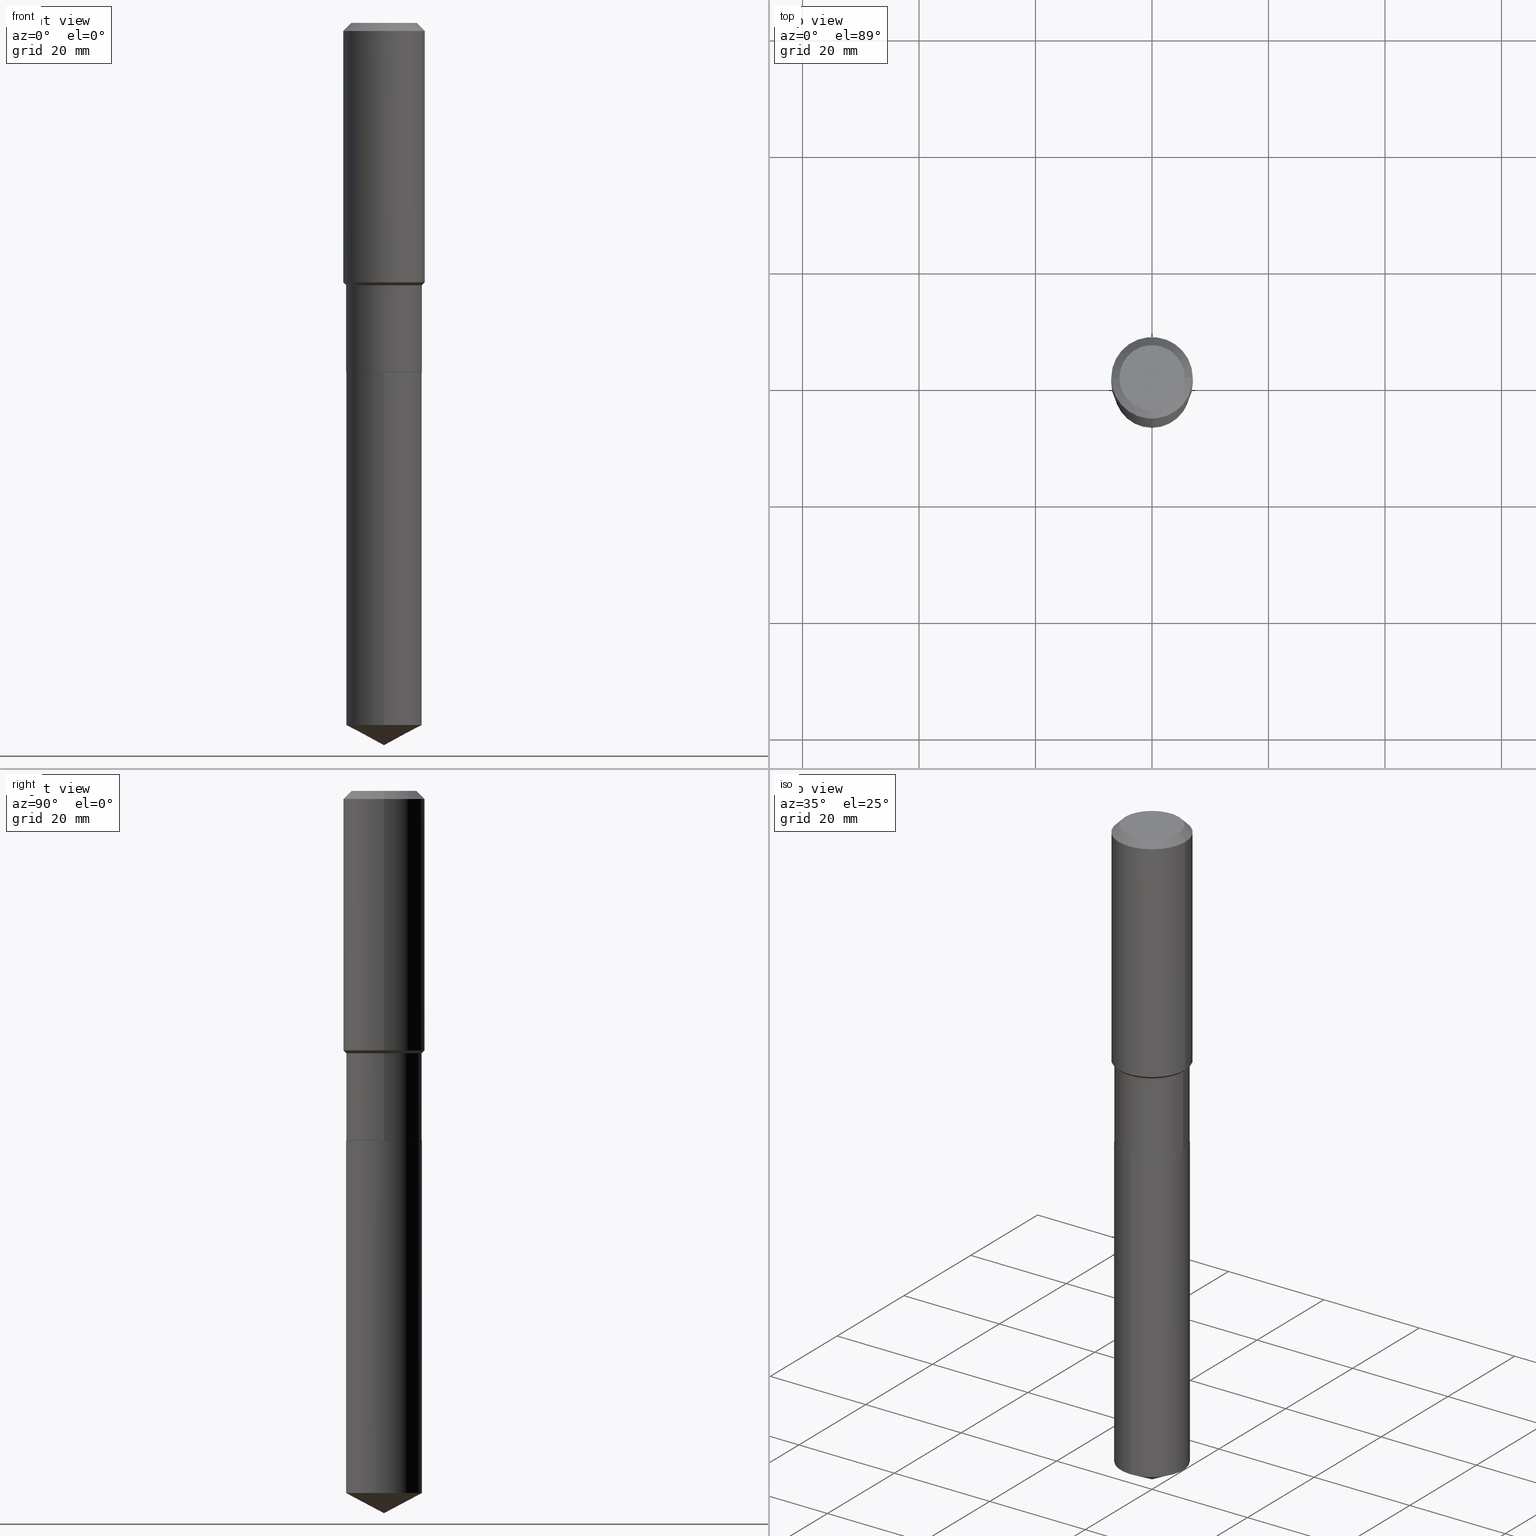
[diagram: canonical four-view strip — front | top / right | iso, engineering-drawing reading convention]
A machine part, canonical four-view strip (front | top / right | iso — engineering-drawing reading convention). The complete STEP part file that produces these views, byte-faithful:
ISO-10303-21;
HEADER;
FILE_DESCRIPTION (( 'STEP AP203' ),
    '1' );
FILE_NAME ('65093.STEP',
    '2024-04-24T20:39:41',
    ( '' ),
    ( '' ),
    'SwSTEP 2.0',
    'SolidWorks 2023',
    '' );
FILE_SCHEMA (( 'CONFIG_CONTROL_DESIGN' ));
ENDSEC;

DATA;
#1 = LINE ( 'NONE', #387, #12 ) ;
#2 = VERTEX_POINT ( 'NONE', #217 ) ;
#3 = AXIS2_PLACEMENT_3D ( 'NONE', #404, #211, #219 ) ;
#4 = SHAPE_DEFINITION_REPRESENTATION ( #201, #49 ) ;
#5 = DIRECTION ( 'NONE',  ( -2.445241835066597652E-29, 3.491806374403287168E-15, 1.000000000000000000 ) ) ;
#6 = EDGE_CURVE ( 'NONE', #428, #277, #374, .T. ) ;
#7 = ORIENTED_EDGE ( 'NONE', *, *, #120, .T. ) ;
#8 = CARTESIAN_POINT ( 'NONE',  ( 1.818278860810212454E-15, 0.2558999999999917452, -2.362200000000000522 ) ) ;
#9 = VERTEX_POINT ( 'NONE', #406 ) ;
#10 = PRODUCT_DEFINITION ( 'UNKNOWN', '', #344, #375 ) ;
#11 = DIRECTION ( 'NONE',  ( -6.982962677686266711E-15, -1.000000000000000000, 3.202635397027271900E-15 ) ) ;
#12 = VECTOR ( 'NONE', #79, 39.37007874015748143 ) ;
#13 = CIRCLE ( 'NONE', #176, 0.2559000000000000163 ) ;
#14 = DIRECTION ( 'NONE',  ( -2.445241835066597652E-29, 3.491806374403287168E-15, 1.000000000000000000 ) ) ;
#15 = ORIENTED_EDGE ( 'NONE', *, *, #282, .F. ) ;
#16 = CARTESIAN_POINT ( 'NONE',  ( 5.776686413970529753E-29, -8.247577218615278049E-15, -2.362199999999999633 ) ) ;
#17 = ORIENTED_EDGE ( 'NONE', *, *, #40, .F. ) ;
#18 = DIRECTION ( 'NONE',  ( 1.000000000000000000, -6.982962677686267499E-15, 4.876176775795935793E-29 ) ) ;
#19 = VERTEX_POINT ( 'NONE', #70 ) ;
#20 = DIRECTION ( 'NONE',  ( 1.000000000000000000, -6.982962677686265922E-15, 0.000000000000000000 ) ) ;
#21 = SECURITY_CLASSIFICATION ( '', '', #143 ) ;
#22 = EDGE_LOOP ( 'NONE', ( #63, #154, #215, #463 ) ) ;
#23 = DIRECTION ( 'NONE',  ( 1.000000000000000000, 0.000000000000000000, 0.000000000000000000 ) ) ;
#24 = ORIENTED_EDGE ( 'NONE', *, *, #257, .T. ) ;
#25 = CC_DESIGN_PERSON_AND_ORGANIZATION_ASSIGNMENT ( #481, #298, ( #21 ) ) ;
#26 =( NAMED_UNIT ( * ) SI_UNIT ( $, .STERADIAN. ) SOLID_ANGLE_UNIT ( ) );
#27 = VERTEX_POINT ( 'NONE', #142 ) ;
#28 = DATE_TIME_ROLE ( 'creation_date' ) ;
#29 = DIRECTION ( 'NONE',  ( -6.165590087286835240E-15, -0.8829475928589263223, 0.4694715627858919715 ) ) ;
#30 = DIRECTION ( 'NONE',  ( -2.445468806185136597E-29, 3.491481338843145583E-15, 1.000000000000000000 ) ) ;
#31 = CARTESIAN_POINT ( 'NONE',  ( -1.786940149219857758E-15, -0.2559000000000082875, -2.362199999999998745 ) ) ;
#32 = PERSON ( 'UNSPECIFIED', 'UNSPECIFIED', 'UNSPECIFIED', ('UNSPECIFIED'), ('UNSPECIFIED'), ('UNSPECIFIED') ) ;
#33 = CC_DESIGN_PERSON_AND_ORGANIZATION_ASSIGNMENT ( #446, #332, ( #344 ) ) ;
#34 = CARTESIAN_POINT ( 'NONE',  ( -0.2559000000000000163, 1.818278860810096492E-15, -1.258755489596230312E-29 ) ) ;
#35 = DIRECTION ( 'NONE',  ( -2.445241835066597932E-29, 3.491806374403287563E-15, 1.000000000000000000 ) ) ;
#36 = AXIS2_PLACEMENT_3D ( 'NONE', #340, #5, #263 ) ;
#37 = VECTOR ( 'NONE', #177, 39.37007874015748143 ) ;
#38 = DIRECTION ( 'NONE',  ( -2.445468806185136597E-29, 3.491481338843145583E-15, 1.000000000000000000 ) ) ;
#39 = FACE_OUTER_BOUND ( 'NONE', #233, .T. ) ;
#40 = EDGE_CURVE ( 'NONE', #315, #358, #480, .T. ) ;
#41 = DIRECTION ( 'NONE',  ( -2.438088387897960049E-29, 3.491481338843145188E-15, 1.000000000000000000 ) ) ;
#42 = ORIENTED_EDGE ( 'NONE', *, *, #218, .T. ) ;
#43 = AXIS2_PLACEMENT_3D ( 'NONE', #101, #107, #413 ) ;
#44 = CIRCLE ( 'NONE', #289, 0.2558999999999999608 ) ;
#45 = CARTESIAN_POINT ( 'NONE',  ( 5.776686413970529753E-29, -8.247577218615278049E-15, -2.362199999999999633 ) ) ;
#46 = EDGE_LOOP ( 'NONE', ( #17, #346, #320 ) ) ;
#47 = FACE_OUTER_BOUND ( 'NONE', #140, .T. ) ;
#48 = DIRECTION ( 'NONE',  ( -2.445468806185136597E-29, 3.491481338843145583E-15, 1.000000000000000000 ) ) ;
#49 = ADVANCED_BREP_SHAPE_REPRESENTATION ( '65093', ( #309, #475, #145 ), #336 ) ;
#50 = ORIENTED_EDGE ( 'NONE', *, *, #422, .F. ) ;
#51 = CIRCLE ( 'NONE', #189, 0.2559000000000000163 ) ;
#52 = LOCAL_TIME ( 16, 39, 41.00000000000000000, #207 ) ;
#53 = DIRECTION ( 'NONE',  ( 1.000000000000000000, -6.982962677686267499E-15, 0.000000000000000000 ) ) ;
#54 = ORIENTED_EDGE ( 'NONE', *, *, #450, .T. ) ;
#55 = EDGE_CURVE ( 'NONE', #122, #206, #118, .T. ) ;
#56 = CARTESIAN_POINT ( 'NONE',  ( 0.000000000000000000, 0.000000000000000000, 0.000000000000000000 ) ) ;
#57 = EDGE_LOOP ( 'NONE', ( #356, #258 ) ) ;
#58 = DIRECTION ( 'NONE',  ( -6.982962677686266711E-15, -1.000000000000000000, 3.202635397027271900E-15 ) ) ;
#59 = ORIENTED_EDGE ( 'NONE', *, *, #489, .T. ) ;
#60 = CIRCLE ( 'NONE', #36, 0.2559000000000000163 ) ;
#61 = COORDINATED_UNIVERSAL_TIME_OFFSET ( 5, 0, .BEHIND. ) ;
#62 = VECTOR ( 'NONE', #94, 39.37007874015748854 ) ;
#63 = ORIENTED_EDGE ( 'NONE', *, *, #55, .T. ) ;
#64 = PERSON_AND_ORGANIZATION_ROLE ( 'design_owner' ) ;
#65 = CARTESIAN_POINT ( 'NONE',  ( -0.2554000000000000159, -6.432851071483981667E-15, -2.362199999999999633 ) ) ;
#66 = PERSON_AND_ORGANIZATION ( #32, #135 ) ;
#67 = PLANE ( 'NONE',  #296 ) ;
#68 = VECTOR ( 'NONE', #35, 39.37007874015748143 ) ;
#69 = CC_DESIGN_APPROVAL ( #278, ( #10 ) ) ;
#70 = CARTESIAN_POINT ( 'NONE',  ( -0.2756000000000002337, -4.165453340442153443E-15, -1.753899999999999570 ) ) ;
#71 = ORIENTED_EDGE ( 'NONE', *, *, #467, .T. ) ;
#72 = FACE_OUTER_BOUND ( 'NONE', #22, .T. ) ;
#73 = COORDINATED_UNIVERSAL_TIME_OFFSET ( 5, 0, .BEHIND. ) ;
#74 = CARTESIAN_POINT ( 'NONE',  ( 4.337283474649957727E-29, -6.192491302572202795E-15, -1.773599999999999843 ) ) ;
#75 = EDGE_CURVE ( 'NONE', #206, #27, #331, .T. ) ;
#76 = ORIENTED_EDGE ( 'NONE', *, *, #445, .F. ) ;
#77 = FACE_OUTER_BOUND ( 'NONE', #322, .T. ) ;
#78 = VERTEX_POINT ( 'NONE', #182 ) ;
#79 = DIRECTION ( 'NONE',  ( -2.445468806185136877E-29, 3.491481338843145188E-15, 1.000000000000000000 ) ) ;
#80 = DIRECTION ( 'NONE',  ( -2.445241835066597652E-29, 3.491806374403287168E-15, 1.000000000000000000 ) ) ;
#81 = DIRECTION ( 'NONE',  ( 0.7071067811866199593, -2.468850131083015945E-15, 0.7071067811864750752 ) ) ;
#82 = DIMENSIONAL_EXPONENTS ( 1.000000000000000000, 0.000000000000000000, 0.000000000000000000, 0.000000000000000000, 0.000000000000000000, 0.000000000000000000, 0.000000000000000000 ) ;
#83 = CYLINDRICAL_SURFACE ( 'NONE', #487, 0.2559000000000000163 ) ;
#84 = ADVANCED_FACE ( 'NONE', ( #440 ), #109, .T. ) ;
#85 = ORIENTED_EDGE ( 'NONE', *, *, #405, .F. ) ;
#86 = CARTESIAN_POINT ( 'NONE',  ( -8.433140131951128743E-28, 1.204268101654420084E-13, 34.48817874015747975 ) ) ;
#87 = ORIENTED_EDGE ( 'NONE', *, *, #120, .F. ) ;
#88 = ADVANCED_FACE ( 'NONE', ( #248 ), #67, .F. ) ;
#89 = AXIS2_PLACEMENT_3D ( 'NONE', #293, #287, #299 ) ;
#90 = AXIS2_PLACEMENT_3D ( 'NONE', #113, #80, #382 ) ;
#91 = CARTESIAN_POINT ( 'NONE',  ( 0.2756000000000000116, -2.083203699582869812E-15, -0.05512000000000035621 ) ) ;
#92 = ORIENTED_EDGE ( 'NONE', *, *, #93, .F. ) ;
#93 = EDGE_CURVE ( 'NONE', #95, #19, #363, .T. ) ;
#94 = DIRECTION ( 'NONE',  ( -0.7071067811865462405, 7.493145998870349427E-15, 0.7071067811865486830 ) ) ;
#95 = VERTEX_POINT ( 'NONE', #479 ) ;
#96 = CC_DESIGN_PERSON_AND_ORGANIZATION_ASSIGNMENT ( #330, #64, ( #367 ) ) ;
#97 = FACE_OUTER_BOUND ( 'NONE', #203, .T. ) ;
#98 = ORIENTED_EDGE ( 'NONE', *, *, #274, .F. ) ;
#99 = CIRCLE ( 'NONE', #220, 0.2554000000000000159 ) ;
#100 = AXIS2_PLACEMENT_3D ( 'NONE', #199, #430, #195 ) ;
#101 = CARTESIAN_POINT ( 'NONE',  ( 4.289107739168109869E-29, -6.123709120196991610E-15, -1.753899999999999570 ) ) ;
#102 =( LENGTH_UNIT ( ) NAMED_UNIT ( * ) SI_UNIT ( $, .METRE. ) );
#103 = DIRECTION ( 'NONE',  ( -0.7071067811866199593, 7.493145998870616062E-15, 0.7071067811864750752 ) ) ;
#104 = CALENDAR_DATE ( 2024, 24, 4 ) ;
#105 = DIRECTION ( 'NONE',  ( -2.445468806185136877E-29, 3.491481338843145188E-15, 1.000000000000000000 ) ) ;
#106 = VECTOR ( 'NONE', #105, 39.37007874015748143 ) ;
#107 = DIRECTION ( 'NONE',  ( -2.445468806185136597E-29, 3.491481338843145583E-15, 1.000000000000000000 ) ) ;
#108 = APPROVAL_STATUS ( 'not_yet_approved' ) ;
#109 = CYLINDRICAL_SURFACE ( 'NONE', #391, 0.2559000000000000163 ) ;
#110 = DATE_TIME_ROLE ( 'classification_date' ) ;
#111 = APPROVAL ( #209, 'UNSPECIFIED' ) ;
#112 = CARTESIAN_POINT ( 'NONE',  ( -0.2559000000000000719, -5.400882529448933178E-15, -2.361699999999999910 ) ) ;
#113 = CARTESIAN_POINT ( 'NONE',  ( -8.433140131951128743E-28, 1.204268101654420084E-13, 34.48817874015747975 ) ) ;
#114 = CARTESIAN_POINT ( 'NONE',  ( -4.719860820353095009E-47, 6.738710358733624243E-33, 1.930043355456227170E-18 ) ) ;
#115 = DIRECTION ( 'NONE',  ( 2.445468806185136597E-29, -3.491481338843145583E-15, -1.000000000000000000 ) ) ;
#116 = ADVANCED_FACE ( 'NONE', ( #72 ), #372, .T. ) ;
#117 = DIRECTION ( 'NONE',  ( -2.445241835066597652E-29, 3.491806374403287168E-15, 1.000000000000000000 ) ) ;
#118 = CIRCLE ( 'NONE', #89, 0.2559000000000000163 ) ;
#119 = CC_DESIGN_APPROVAL ( #111, ( #344 ) ) ;
#120 = EDGE_CURVE ( 'NONE', #206, #122, #311, .T. ) ;
#121 = CYLINDRICAL_SURFACE ( 'NONE', #153, 0.2756000000000001227 ) ;
#122 = VERTEX_POINT ( 'NONE', #333 ) ;
#123 = CC_DESIGN_DATE_AND_TIME_ASSIGNMENT ( #294, #110, ( #21 ) ) ;
#124 = DIRECTION ( 'NONE',  ( -2.445468806185136597E-29, 3.491481338843145583E-15, 1.000000000000000000 ) ) ;
#125 = ORIENTED_EDGE ( 'NONE', *, *, #259, .T. ) ;
#126 = DIRECTION ( 'NONE',  ( -2.445241835066597652E-29, 3.491806374403287168E-15, 1.000000000000000000 ) ) ;
#127 = ORIENTED_EDGE ( 'NONE', *, *, #268, .T. ) ;
#128 = AXIS2_PLACEMENT_3D ( 'NONE', #186, #149, #230 ) ;
#129 = LOCAL_TIME ( 16, 39, 41.00000000000000000, #139 ) ;
#130 = FACE_OUTER_BOUND ( 'NONE', #224, .T. ) ;
#131 = EDGE_LOOP ( 'NONE', ( #426, #472, #200 ) ) ;
#132 = DIRECTION ( 'NONE',  ( -2.445468806185136597E-29, 3.491481338843145583E-15, 1.000000000000000000 ) ) ;
#133 = ORIENTED_EDGE ( 'NONE', *, *, #313, .F. ) ;
#134 = DIRECTION ( 'NONE',  ( 1.000000000000000000, -6.982962677686269866E-15, 0.000000000000000000 ) ) ;
#135 = ORGANIZATION ( 'UNSPECIFIED', 'UNSPECIFIED', '' ) ;
#136 = LINE ( 'NONE', #31, #37 ) ;
#137 = ADVANCED_FACE ( 'NONE', ( #442 ), #204, .T. ) ;
#138 = EDGE_LOOP ( 'NONE', ( #281, #236, #127, #76 ) ) ;
#139 = COORDINATED_UNIVERSAL_TIME_OFFSET ( 5, 0, .BEHIND. ) ;
#140 = EDGE_LOOP ( 'NONE', ( #85, #444, #244, #401 ) ) ;
#141 = CALENDAR_DATE ( 2024, 24, 4 ) ;
#142 = CARTESIAN_POINT ( 'NONE',  ( -0.2558999999999999608, -5.400882529448933178E-15, -1.773599999999999843 ) ) ;
#143 = SECURITY_CLASSIFICATION_LEVEL ( 'unclassified' ) ;
#144 = AXIS2_PLACEMENT_3D ( 'NONE', #366, #252, #376 ) ;
#145 = AXIS2_PLACEMENT_3D ( 'NONE', #247, #403, #23 ) ;
#146 = CARTESIAN_POINT ( 'NONE',  ( 1.818278860810154079E-15, 0.2558999999999917452, -2.362200000000000522 ) ) ;
#147 = APPROVAL_STATUS ( 'not_yet_approved' ) ;
#148 = DIRECTION ( 'NONE',  ( -2.445468806185136597E-29, 3.491481338843145583E-15, 1.000000000000000000 ) ) ;
#149 = DIRECTION ( 'NONE',  ( 2.445468806185136597E-29, -3.491481338843145583E-15, -1.000000000000000000 ) ) ;
#150 = APPROVAL_DATE_TIME ( #261, #338 ) ;
#151 = EDGE_CURVE ( 'NONE', #2, #206, #369, .T. ) ;
#152 = DIRECTION ( 'NONE',  ( -6.982962677686266711E-15, -1.000000000000000000, 3.202635397027271900E-15 ) ) ;
#153 = AXIS2_PLACEMENT_3D ( 'NONE', #271, #48, #283 ) ;
#154 = ORIENTED_EDGE ( 'NONE', *, *, #75, .T. ) ;
#155 = CARTESIAN_POINT ( 'NONE',  ( 1.193742611461162193E-28, -1.704664953919940824E-14, -4.881899999999999906 ) ) ;
#156 = VERTEX_POINT ( 'NONE', #175 ) ;
#157 = CARTESIAN_POINT ( 'NONE',  ( 0.2756000000000000116, -2.116954965367370658E-15, -0.05512000000000035621 ) ) ;
#158 = ORIENTED_EDGE ( 'NONE', *, *, #405, .T. ) ;
#159 = EDGE_CURVE ( 'NONE', #350, #156, #270, .T. ) ;
#160 = DIRECTION ( 'NONE',  ( -2.445468806185136877E-29, 3.491481338843145188E-15, 1.000000000000000000 ) ) ;
#161 = VECTOR ( 'NONE', #29, 39.37007874015748143 ) ;
#162 = CIRCLE ( 'NONE', #409, 0.2559000000000000163 ) ;
#163 = CARTESIAN_POINT ( 'NONE',  ( 0.2559000000000000163, -1.786940149219915740E-15, 1.247813636926179898E-29 ) ) ;
#164 = ORIENTED_EDGE ( 'NONE', *, *, #407, .T. ) ;
#165 = DIRECTION ( 'NONE',  ( -2.445241835066597652E-29, 3.491806374403287168E-15, 1.000000000000000000 ) ) ;
#166 = ORIENTED_EDGE ( 'NONE', *, *, #450, .F. ) ;
#167 = DIRECTION ( 'NONE',  ( 0.7071067811865453523, -7.319954787623248157E-15, -0.7071067811865496822 ) ) ;
#168 = ORIENTED_EDGE ( 'NONE', *, *, #259, .F. ) ;
#169 = AXIS2_PLACEMENT_3D ( 'NONE', #255, #30, #134 ) ;
#170 = LOCAL_TIME ( 16, 39, 41.00000000000000000, #61 ) ;
#171 = CARTESIAN_POINT ( 'NONE',  ( 1.347942405969256063E-30, -1.924504513970354330E-16, -0.05512000000000035621 ) ) ;
#172 = ORIENTED_EDGE ( 'NONE', *, *, #183, .T. ) ;
#173 = APPROVAL_ROLE ( '' ) ;
#174 = EDGE_LOOP ( 'NONE', ( #196, #7, #71, #133 ) ) ;
#175 = CARTESIAN_POINT ( 'NONE',  ( 0.2204800000000000093, -1.797903149065768707E-15, 3.860086710924123164E-18 ) ) ;
#176 = AXIS2_PLACEMENT_3D ( 'NONE', #435, #14, #357 ) ;
#177 = DIRECTION ( 'NONE',  ( -2.445241835066597932E-29, 3.491806374403287563E-15, 1.000000000000000000 ) ) ;
#178 = DIRECTION ( 'NONE',  ( 1.000000000000000000, -6.982962677686266711E-15, 4.876132675269083677E-29 ) ) ;
#179 =( NAMED_UNIT ( * ) PLANE_ANGLE_UNIT ( ) SI_UNIT ( $, .RADIAN. ) );
#180 = DIRECTION ( 'NONE',  ( 1.000000000000000000, -6.982962677686266711E-15, 4.876176775795935232E-29 ) ) ;
#181 = APPROVAL_DATE_TIME ( #214, #111 ) ;
#182 = CARTESIAN_POINT ( 'NONE',  ( 0.2558999999999999608, -7.979431451792117746E-15, -1.773599999999999843 ) ) ;
#183 = EDGE_CURVE ( 'NONE', #78, #95, #329, .T. ) ;
#184 = VECTOR ( 'NONE', #353, 39.37007874015748854 ) ;
#185 = CARTESIAN_POINT ( 'NONE',  ( 1.193742611461162193E-28, -1.704664953919940824E-14, -4.881899999999999906 ) ) ;
#186 = CARTESIAN_POINT ( 'NONE',  ( 1.347942405969256063E-30, -1.924504513970354330E-16, -0.05512000000000035621 ) ) ;
#187 = LINE ( 'NONE', #306, #327 ) ;
#188 = CARTESIAN_POINT ( 'NONE',  ( 1.347942405969256063E-30, -1.924504513970354330E-16, -0.05512000000000035621 ) ) ;
#189 = AXIS2_PLACEMENT_3D ( 'NONE', #267, #341, #488 ) ;
#190 = APPROVAL_PERSON_ORGANIZATION ( #251, #111, #373 ) ;
#191 = EDGE_CURVE ( 'NONE', #9, #277, #60, .T. ) ;
#192 = CARTESIAN_POINT ( 'NONE',  ( 5.776686413970529753E-29, -8.247577218615278049E-15, -2.362199999999999633 ) ) ;
#193 = LINE ( 'NONE', #91, #439 ) ;
#194 = CC_DESIGN_DATE_AND_TIME_ASSIGNMENT ( #292, #28, ( #10 ) ) ;
#195 = DIRECTION ( 'NONE',  ( 1.000000000000000000, -6.982962677686266711E-15, 0.000000000000000000 ) ) ;
#196 = ORIENTED_EDGE ( 'NONE', *, *, #75, .F. ) ;
#197 = DIRECTION ( 'NONE',  ( -2.445468806185136597E-29, 3.491481338843145583E-15, 1.000000000000000000 ) ) ;
#198 = ORIENTED_EDGE ( 'NONE', *, *, #183, .F. ) ;
#199 = CARTESIAN_POINT ( 'NONE',  ( 4.337283474649957727E-29, -6.192491302572202795E-15, -1.773599999999999843 ) ) ;
#200 = ORIENTED_EDGE ( 'NONE', *, *, #458, .F. ) ;
#201 = PRODUCT_DEFINITION_SHAPE ( 'NONE', 'NONE',  #10 ) ;
#202 = DIRECTION ( 'NONE',  ( -2.445241835066597652E-29, 3.491806374403287168E-15, 1.000000000000000000 ) ) ;
#203 = EDGE_LOOP ( 'NONE', ( #342, #54, #92, #198 ) ) ;
#204 = CONICAL_SURFACE ( 'NONE', #144, 0.2554000000000000159, 0.7853981633975507526 ) ;
#205 =( CONVERSION_BASED_UNIT ( 'INCH', #443 ) LENGTH_UNIT ( ) NAMED_UNIT ( #82 ) );
#206 = VERTEX_POINT ( 'NONE', #112 ) ;
#207 = COORDINATED_UNIVERSAL_TIME_OFFSET ( 5, 0, .BEHIND. ) ;
#208 = ORIENTED_EDGE ( 'NONE', *, *, #6, .F. ) ;
#209 = APPROVAL_STATUS ( 'not_yet_approved' ) ;
#210 = APPLICATION_CONTEXT ( 'configuration controlled 3d designs of mechanical parts and assemblies' ) ;
#211 = DIRECTION ( 'NONE',  ( -2.445468806185136597E-29, 3.491481338843145583E-15, 1.000000000000000000 ) ) ;
#212 = CONICAL_SURFACE ( 'NONE', #100, 0.2558999999999999608, 0.7853981633974466137 ) ;
#213 = ADVANCED_FACE ( 'NONE', ( #226 ), #269, .F. ) ;
#214 = DATE_AND_TIME ( #477, #129 ) ;
#215 = ORIENTED_EDGE ( 'NONE', *, *, #476, .F. ) ;
#216 = CALENDAR_DATE ( 2024, 24, 4 ) ;
#217 = CARTESIAN_POINT ( 'NONE',  ( -0.2554000000000000159, -6.430201844309871254E-15, -2.362199999999999633 ) ) ;
#218 = EDGE_CURVE ( 'NONE', #2, #365, #335, .T. ) ;
#219 = DIRECTION ( 'NONE',  ( 1.000000000000000000, -6.982962677686266711E-15, 4.876176775795935232E-29 ) ) ;
#220 = AXIS2_PLACEMENT_3D ( 'NONE', #457, #38, #265 ) ;
#221 = CONICAL_SURFACE ( 'NONE', #90, 74.04434902938353957, 1.082104136236486491 ) ;
#222 = DIRECTION ( 'NONE',  ( -2.445468806185136597E-29, 3.491481338843145583E-15, 1.000000000000000000 ) ) ;
#223 = DIRECTION ( 'NONE',  ( 1.000000000000000000, -6.982962677686266711E-15, 4.876132675269083677E-29 ) ) ;
#224 = EDGE_LOOP ( 'NONE', ( #408, #231, #275, #272 ) ) ;
#225 = CARTESIAN_POINT ( 'NONE',  ( 4.337283474649957727E-29, -6.192491302572202795E-15, -1.773599999999999843 ) ) ;
#226 = FACE_OUTER_BOUND ( 'NONE', #411, .T. ) ;
#227 = CONICAL_SURFACE ( 'NONE', #128, 0.2756000000000000116, 0.7853981633974452814 ) ;
#228 = CC_DESIGN_APPROVAL ( #338, ( #21 ) ) ;
#229 = EDGE_CURVE ( 'NONE', #365, #2, #99, .T. ) ;
#230 = DIRECTION ( 'NONE',  ( -1.000000000000000000, 6.982962677686269077E-15, 0.000000000000000000 ) ) ;
#231 = ORIENTED_EDGE ( 'NONE', *, *, #348, .T. ) ;
#232 = FACE_OUTER_BOUND ( 'NONE', #436, .T. ) ;
#233 = EDGE_LOOP ( 'NONE', ( #166, #239, #172, #50 ) ) ;
#234 = DIRECTION ( 'NONE',  ( -2.445468806185136597E-29, 3.491481338843145583E-15, 1.000000000000000000 ) ) ;
#235 = AXIS2_PLACEMENT_3D ( 'NONE', #326, #250, #178 ) ;
#236 = ORIENTED_EDGE ( 'NONE', *, *, #422, .T. ) ;
#237 = AXIS2_PLACEMENT_3D ( 'NONE', #171, #132, #389 ) ;
#238 = DIRECTION ( 'NONE',  ( -2.445468806185136877E-29, 3.491481338843145188E-15, 1.000000000000000000 ) ) ;
#239 = ORIENTED_EDGE ( 'NONE', *, *, #313, .T. ) ;
#240 = CC_DESIGN_PERSON_AND_ORGANIZATION_ASSIGNMENT ( #286, #484, ( #344 ) ) ;
#241 = CARTESIAN_POINT ( 'NONE',  ( -0.2204800000000000093, 1.635828836874783961E-15, 3.860086710901350968E-18 ) ) ;
#242 = VERTEX_POINT ( 'NONE', #459 ) ;
#243 = LINE ( 'NONE', #470, #416 ) ;
#244 = ORIENTED_EDGE ( 'NONE', *, *, #282, .T. ) ;
#245 = VECTOR ( 'NONE', #452, 39.37007874015748854 ) ;
#246 = CONICAL_SURFACE ( 'NONE', #303, 74.04434902938353957, 1.082104136236486491 ) ;
#247 = CARTESIAN_POINT ( 'NONE',  ( 0.000000000000000000, 0.000000000000000000, 0.000000000000000000 ) ) ;
#248 = FACE_OUTER_BOUND ( 'NONE', #57, .T. ) ;
#249 = DIRECTION ( 'NONE',  ( -6.982962677686265922E-15, -1.000000000000000000, 3.541896320645560869E-15 ) ) ;
#250 = DIRECTION ( 'NONE',  ( -2.445468806185136597E-29, 3.491481338843145583E-15, 1.000000000000000000 ) ) ;
#251 = PERSON_AND_ORGANIZATION ( #32, #135 ) ;
#252 = DIRECTION ( 'NONE',  ( -2.445468806185136597E-29, 3.491481338843145583E-15, 1.000000000000000000 ) ) ;
#253 = LOCAL_TIME ( 16, 39, 41.00000000000000000, #73 ) ;
#254 = APPLICATION_PROTOCOL_DEFINITION ( 'international standard', 'config_control_design', 1994, #210 ) ;
#255 = CARTESIAN_POINT ( 'NONE',  ( 5.775463679567436952E-29, -8.245831477945857334E-15, -2.361699999999999910 ) ) ;
#256 = UNCERTAINTY_MEASURE_WITH_UNIT (LENGTH_MEASURE( 1.000000000000000082E-05 ), #205, 'distance_accuracy_value', 'NONE');
#257 = EDGE_CURVE ( 'NONE', #358, #428, #51, .T. ) ;
#258 = ORIENTED_EDGE ( 'NONE', *, *, #388, .T. ) ;
#259 = EDGE_CURVE ( 'NONE', #365, #122, #380, .T. ) ;
#260 = DIRECTION ( 'NONE',  ( -0.7071067811865453523, 2.468850131082234184E-15, -0.7071067811865496822 ) ) ;
#261 = DATE_AND_TIME ( #339, #253 ) ;
#262 = AXIS2_PLACEMENT_3D ( 'NONE', #314, #310, #20 ) ;
#263 = DIRECTION ( 'NONE',  ( -6.982962677686266711E-15, -1.000000000000000000, 3.202635397027271900E-15 ) ) ;
#264 = ADVANCED_FACE ( 'NONE', ( #77 ), #227, .T. ) ;
#265 = DIRECTION ( 'NONE',  ( 1.000000000000000000, -6.982962677686267499E-15, 0.000000000000000000 ) ) ;
#266 = ADVANCED_FACE ( 'NONE', ( #418 ), #304, .F. ) ;
#267 = CARTESIAN_POINT ( 'NONE',  ( 1.160525179612455455E-28, -1.657077104883921077E-14, -4.745835556437827840 ) ) ;
#268 = EDGE_CURVE ( 'NONE', #95, #324, #1, .T. ) ;
#269 = PLANE ( 'NONE',  #448 ) ;
#270 = CIRCLE ( 'NONE', #235, 0.2204800000000000093 ) ;
#271 = CARTESIAN_POINT ( 'NONE',  ( 0.000000000000000000, 0.000000000000000000, 0.000000000000000000 ) ) ;
#272 = ORIENTED_EDGE ( 'NONE', *, *, #268, .F. ) ;
#273 = DIRECTION ( 'NONE',  ( 1.000000000000000000, -6.982962677686266711E-15, 0.000000000000000000 ) ) ;
#274 = EDGE_CURVE ( 'NONE', #156, #350, #288, .T. ) ;
#275 = ORIENTED_EDGE ( 'NONE', *, *, #407, .F. ) ;
#276 = FACE_OUTER_BOUND ( 'NONE', #138, .T. ) ;
#277 = VERTEX_POINT ( 'NONE', #8 ) ;
#278 = APPROVAL ( #108, 'UNSPECIFIED' ) ;
#279 = AXIS2_PLACEMENT_3D ( 'NONE', #473, #433, #53 ) ;
#280 = DIRECTION ( 'NONE',  ( 1.000000000000000000, -6.982962677686266711E-15, 0.000000000000000000 ) ) ;
#281 = ORIENTED_EDGE ( 'NONE', *, *, #348, .F. ) ;
#282 = EDGE_CURVE ( 'NONE', #350, #242, #187, .T. ) ;
#283 = DIRECTION ( 'NONE',  ( 1.000000000000000000, -6.982962677686267499E-15, 4.876176775795935793E-29 ) ) ;
#284 = ORIENTED_EDGE ( 'NONE', *, *, #218, .F. ) ;
#285 = ADVANCED_FACE ( 'NONE', ( #424 ), #454, .T. ) ;
#286 = PERSON_AND_ORGANIZATION ( #32, #135 ) ;
#287 = DIRECTION ( 'NONE',  ( -2.445468806185136597E-29, 3.491481338843145583E-15, 1.000000000000000000 ) ) ;
#288 = CIRCLE ( 'NONE', #415, 0.2204800000000000093 ) ;
#289 = AXIS2_PLACEMENT_3D ( 'NONE', #464, #124, #273 ) ;
#290 = DATE_AND_TIME ( #104, #52 ) ;
#291 = CARTESIAN_POINT ( 'NONE',  ( 5.776686413970529753E-29, -8.247577218615278049E-15, -2.362199999999999633 ) ) ;
#292 = DATE_AND_TIME ( #216, #170 ) ;
#293 = CARTESIAN_POINT ( 'NONE',  ( 5.775463679567436952E-29, -8.245831477945857334E-15, -2.361699999999999910 ) ) ;
#294 = DATE_AND_TIME ( #141, #402 ) ;
#295 = CARTESIAN_POINT ( 'NONE',  ( 0.000000000000000000, 0.000000000000000000, 0.000000000000000000 ) ) ;
#296 = AXIS2_PLACEMENT_3D ( 'NONE', #291, #447, #482 ) ;
#297 = CIRCLE ( 'NONE', #456, 0.2558999999999999608 ) ;
#298 = PERSON_AND_ORGANIZATION_ROLE ( 'classification_officer' ) ;
#299 = DIRECTION ( 'NONE',  ( 1.000000000000000000, -6.982962677686269866E-15, 0.000000000000000000 ) ) ;
#300 = ADVANCED_FACE ( 'NONE', ( #47 ), #385, .T. ) ;
#301 = CARTESIAN_POINT ( 'NONE',  ( 0.2558999999999999608, -7.979431451792117746E-15, -1.773599999999999843 ) ) ;
#302 = DIRECTION ( 'NONE',  ( -2.445468806185136597E-29, 3.491481338843145583E-15, 1.000000000000000000 ) ) ;
#303 = AXIS2_PLACEMENT_3D ( 'NONE', #86, #126, #249 ) ;
#304 = PLANE ( 'NONE',  #469 ) ;
#305 = ORIENTED_EDGE ( 'NONE', *, *, #388, .F. ) ;
#306 = CARTESIAN_POINT ( 'NONE',  ( -0.2756000000000000116, 1.732054062573300039E-15, -0.05512000000000035621 ) ) ;
#307 = EDGE_LOOP ( 'NONE', ( #398, #361, #396, #168 ) ) ;
#308 = DIRECTION ( 'NONE',  ( 1.000000000000000000, -6.982962677686265922E-15, 4.876176775795935793E-29 ) ) ;
#309 = MANIFOLD_SOLID_BREP ( 'Body-Move/Copy2[1]', #384 ) ;
#310 = DIRECTION ( 'NONE',  ( -2.445468806185136597E-29, 3.491481338843145583E-15, 1.000000000000000000 ) ) ;
#311 = CIRCLE ( 'NONE', #169, 0.2559000000000000163 ) ;
#312 = CIRCLE ( 'NONE', #237, 0.2756000000000000116 ) ;
#313 = EDGE_CURVE ( 'NONE', #27, #78, #297, .T. ) ;
#314 = CARTESIAN_POINT ( 'NONE',  ( 1.347942405969256063E-30, -1.924504513970354330E-16, -0.05512000000000035621 ) ) ;
#315 = VERTEX_POINT ( 'NONE', #155 ) ;
#316 = ADVANCED_FACE ( 'NONE', ( #414 ), #221, .T. ) ;
#317 = LINE ( 'NONE', #163, #328 ) ;
#318 = EDGE_LOOP ( 'NONE', ( #394, #284 ) ) ;
#319 = DIRECTION ( 'NONE',  ( 1.000000000000000000, -6.982962677686267499E-15, 0.000000000000000000 ) ) ;
#320 = ORIENTED_EDGE ( 'NONE', *, *, #257, .F. ) ;
#321 = CARTESIAN_POINT ( 'NONE',  ( -0.2558999999999999608, -4.374212441762106303E-15, -1.773599999999999843 ) ) ;
#322 = EDGE_LOOP ( 'NONE', ( #98, #158, #164, #15 ) ) ;
#323 = PERSON_AND_ORGANIZATION_ROLE ( 'creator' ) ;
#324 = VERTEX_POINT ( 'NONE', #157 ) ;
#325 = APPLICATION_PROTOCOL_DEFINITION ( 'international standard', 'config_control_design', 1994, #419 ) ;
#326 = CARTESIAN_POINT ( 'NONE',  ( -9.439721640706190018E-47, 1.347742071746724849E-32, 3.860086710912454339E-18 ) ) ;
#327 = VECTOR ( 'NONE', #260, 39.37007874015748143 ) ;
#328 = VECTOR ( 'NONE', #238, 39.37007874015748143 ) ;
#329 = LINE ( 'NONE', #301, #245 ) ;
#330 = PERSON_AND_ORGANIZATION ( #32, #135 ) ;
#331 = LINE ( 'NONE', #34, #106 ) ;
#332 = PERSON_AND_ORGANIZATION_ROLE ( 'creator' ) ;
#333 = CARTESIAN_POINT ( 'NONE',  ( 0.2559000000000000163, -1.003277162716577307E-14, -2.361699999999999910 ) ) ;
#334 = ADVANCED_FACE ( 'NONE', ( #39 ), #379, .T. ) ;
#335 = CIRCLE ( 'NONE', #343, 0.2554000000000000159 ) ;
#336 =( GEOMETRIC_REPRESENTATION_CONTEXT ( 3 ) GLOBAL_UNCERTAINTY_ASSIGNED_CONTEXT ( ( #256 ) ) GLOBAL_UNIT_ASSIGNED_CONTEXT ( ( #205, #179, #26 ) ) REPRESENTATION_CONTEXT ( 'NONE', 'WORKASPACE' ) );
#337 = DIRECTION ( 'NONE',  ( -1.000000000000000000, 6.982962677686269077E-15, 0.000000000000000000 ) ) ;
#338 = APPROVAL ( #147, 'UNSPECIFIED' ) ;
#339 = CALENDAR_DATE ( 2024, 24, 4 ) ;
#340 = CARTESIAN_POINT ( 'NONE',  ( 5.776686413970529753E-29, -8.247577218615278049E-15, -2.362199999999999633 ) ) ;
#341 = DIRECTION ( 'NONE',  ( -2.445241835066597652E-29, 3.491806374403287168E-15, 1.000000000000000000 ) ) ;
#342 = ORIENTED_EDGE ( 'NONE', *, *, #476, .T. ) ;
#343 = AXIS2_PLACEMENT_3D ( 'NONE', #383, #222, #347 ) ;
#344 = PRODUCT_DEFINITION_FORMATION_WITH_SPECIFIED_SOURCE ( 'ANY', '', #367, .NOT_KNOWN. ) ;
#345 = DIRECTION ( 'NONE',  ( 1.000000000000000000, -6.982962677686266711E-15, 0.000000000000000000 ) ) ;
#346 = ORIENTED_EDGE ( 'NONE', *, *, #371, .T. ) ;
#347 = DIRECTION ( 'NONE',  ( 1.000000000000000000, -6.982962677686267499E-15, 0.000000000000000000 ) ) ;
#348 = EDGE_CURVE ( 'NONE', #19, #242, #243, .T. ) ;
#349 = CARTESIAN_POINT ( 'NONE',  ( -1.786940149219799777E-15, -0.2559000000000166142, -4.745835556437826952 ) ) ;
#350 = VERTEX_POINT ( 'NONE', #241 ) ;
#351 = ADVANCED_FACE ( 'NONE', ( #276 ), #395, .T. ) ;
#352 = VECTOR ( 'NONE', #81, 39.37007874015748143 ) ;
#353 = DIRECTION ( 'NONE',  ( 6.273719981627764499E-15, 0.8829475928589295419, 0.4694715627858856433 ) ) ;
#354 = CIRCLE ( 'NONE', #262, 0.2756000000000000116 ) ;
#355 = CC_DESIGN_SECURITY_CLASSIFICATION ( #21, ( #344 ) ) ;
#356 = ORIENTED_EDGE ( 'NONE', *, *, #191, .T. ) ;
#357 = DIRECTION ( 'NONE',  ( -6.982962677686266711E-15, -1.000000000000000000, 4.270180529369696392E-15 ) ) ;
#358 = VERTEX_POINT ( 'NONE', #349 ) ;
#359 = CARTESIAN_POINT ( 'NONE',  ( 4.289107739168109869E-29, -6.123709120196991610E-15, -1.753899999999999570 ) ) ;
#360 = ADVANCED_FACE ( 'NONE', ( #97 ), #212, .T. ) ;
#361 = ORIENTED_EDGE ( 'NONE', *, *, #151, .T. ) ;
#362 = FACE_OUTER_BOUND ( 'NONE', #307, .T. ) ;
#363 = CIRCLE ( 'NONE', #43, 0.2756000000000002337 ) ;
#364 = EDGE_LOOP ( 'NONE', ( #465, #42, #125, #87 ) ) ;
#365 = VERTEX_POINT ( 'NONE', #466 ) ;
#366 = CARTESIAN_POINT ( 'NONE',  ( 5.776686413970529753E-29, -8.247577218615278049E-15, -2.362199999999999633 ) ) ;
#367 = PRODUCT ( '65093', '65093', '', ( #410 ) ) ;
#368 = PERSON_AND_ORGANIZATION ( #32, #135 ) ;
#369 = LINE ( 'NONE', #65, #438 ) ;
#370 = CONICAL_SURFACE ( 'NONE', #279, 0.2554000000000000159, 0.7853981633975507526 ) ;
#371 = EDGE_CURVE ( 'NONE', #315, #428, #425, .T. ) ;
#372 = CYLINDRICAL_SURFACE ( 'NONE', #3, 0.2559000000000000163 ) ;
#373 = APPROVAL_ROLE ( '' ) ;
#374 = LINE ( 'NONE', #146, #68 ) ;
#375 = DESIGN_CONTEXT ( 'detailed design', #210, 'design' ) ;
#376 = DIRECTION ( 'NONE',  ( 1.000000000000000000, -6.982962677686267499E-15, 0.000000000000000000 ) ) ;
#377 = ADVANCED_FACE ( 'NONE', ( #232 ), #83, .T. ) ;
#378 = AXIS2_PLACEMENT_3D ( 'NONE', #74, #460, #280 ) ;
#379 = CONICAL_SURFACE ( 'NONE', #378, 0.2558999999999999608, 0.7853981633974466137 ) ;
#380 = LINE ( 'NONE', #490, #352 ) ;
#381 = APPROVAL_ROLE ( '' ) ;
#382 = DIRECTION ( 'NONE',  ( -6.982962677686265922E-15, -1.000000000000000000, 3.541896320645560869E-15 ) ) ;
#383 = CARTESIAN_POINT ( 'NONE',  ( 5.776686413970529753E-29, -8.247577218615278049E-15, -2.362199999999999633 ) ) ;
#384 = CLOSED_SHELL ( 'NONE', ( #285, #316, #486, #377, #88 ) ) ;
#385 = CONICAL_SURFACE ( 'NONE', #393, 0.2756000000000000116, 0.7853981633974452814 ) ;
#386 = DIRECTION ( 'NONE',  ( 2.438088387897960049E-29, -3.491481338843145188E-15, -1.000000000000000000 ) ) ;
#387 = CARTESIAN_POINT ( 'NONE',  ( 0.2756000000000001227, -1.924504513970336137E-15, 1.343874319409360548E-29 ) ) ;
#388 = EDGE_CURVE ( 'NONE', #277, #9, #162, .T. ) ;
#389 = DIRECTION ( 'NONE',  ( 1.000000000000000000, -6.982962677686265922E-15, 0.000000000000000000 ) ) ;
#390 = ORIENTED_EDGE ( 'NONE', *, *, #159, .T. ) ;
#391 = AXIS2_PLACEMENT_3D ( 'NONE', #295, #478, #180 ) ;
#392 = CARTESIAN_POINT ( 'NONE',  ( 1.193850781978992644E-28, -1.704511394119907477E-14, -4.881899999999999906 ) ) ;
#393 = AXIS2_PLACEMENT_3D ( 'NONE', #188, #115, #337 ) ;
#394 = ORIENTED_EDGE ( 'NONE', *, *, #229, .F. ) ;
#395 = CYLINDRICAL_SURFACE ( 'NONE', #461, 0.2756000000000001227 ) ;
#396 = ORIENTED_EDGE ( 'NONE', *, *, #55, .F. ) ;
#397 = CARTESIAN_POINT ( 'NONE',  ( 1.818278860810212454E-15, 0.2558999999999834740, -4.745835556437828728 ) ) ;
#398 = ORIENTED_EDGE ( 'NONE', *, *, #229, .T. ) ;
#399 = ADVANCED_FACE ( 'NONE', ( #362 ), #370, .T. ) ;
#400 = CARTESIAN_POINT ( 'NONE',  ( 5.776686413970529753E-29, -8.247577218615278049E-15, -2.362199999999999633 ) ) ;
#401 = ORIENTED_EDGE ( 'NONE', *, *, #445, .T. ) ;
#402 = LOCAL_TIME ( 16, 39, 41.00000000000000000, #437 ) ;
#403 = DIRECTION ( 'NONE',  ( 0.000000000000000000, 0.000000000000000000, 1.000000000000000000 ) ) ;
#404 = CARTESIAN_POINT ( 'NONE',  ( 0.000000000000000000, 0.000000000000000000, 0.000000000000000000 ) ) ;
#405 = EDGE_CURVE ( 'NONE', #156, #324, #193, .T. ) ;
#406 = CARTESIAN_POINT ( 'NONE',  ( -1.786940149219857758E-15, -0.2559000000000082875, -2.362199999999998745 ) ) ;
#407 = EDGE_CURVE ( 'NONE', #324, #242, #312, .T. ) ;
#408 = ORIENTED_EDGE ( 'NONE', *, *, #93, .T. ) ;
#409 = AXIS2_PLACEMENT_3D ( 'NONE', #400, #202, #11 ) ;
#410 = MECHANICAL_CONTEXT ( 'NONE', #419, 'mechanical' ) ;
#411 = EDGE_LOOP ( 'NONE', ( #390, #474 ) ) ;
#412 = CC_DESIGN_PERSON_AND_ORGANIZATION_ASSIGNMENT ( #368, #323, ( #10 ) ) ;
#413 = DIRECTION ( 'NONE',  ( 1.000000000000000000, -6.982962677686267499E-15, 0.000000000000000000 ) ) ;
#414 = FACE_OUTER_BOUND ( 'NONE', #46, .T. ) ;
#415 = AXIS2_PLACEMENT_3D ( 'NONE', #421, #302, #223 ) ;
#416 = VECTOR ( 'NONE', #160, 39.37007874015748143 ) ;
#417 = PERSON_AND_ORGANIZATION ( #32, #135 ) ;
#418 = FACE_OUTER_BOUND ( 'NONE', #318, .T. ) ;
#419 = APPLICATION_CONTEXT ( 'configuration controlled 3d designs of mechanical parts and assemblies' ) ;
#420 = DIRECTION ( 'NONE',  ( -1.000000000000000000, 6.982962677686265922E-15, -4.876176775795935793E-29 ) ) ;
#421 = CARTESIAN_POINT ( 'NONE',  ( -9.439721640706190018E-47, 1.347742071746724849E-32, 3.860086710912454339E-18 ) ) ;
#422 = EDGE_CURVE ( 'NONE', #19, #95, #449, .T. ) ;
#423 = AXIS2_PLACEMENT_3D ( 'NONE', #359, #197, #319 ) ;
#424 = FACE_OUTER_BOUND ( 'NONE', #432, .T. ) ;
#425 = LINE ( 'NONE', #392, #184 ) ;
#426 = ORIENTED_EDGE ( 'NONE', *, *, #371, .F. ) ;
#427 = FACE_OUTER_BOUND ( 'NONE', #131, .T. ) ;
#428 = VERTEX_POINT ( 'NONE', #397 ) ;
#429 = CLOSED_SHELL ( 'NONE', ( #399, #264, #453, #360, #116, #84, #334, #351, #300, #213, #266, #137 ) ) ;
#430 = DIRECTION ( 'NONE',  ( -2.445468806185136597E-29, 3.491481338843145583E-15, 1.000000000000000000 ) ) ;
#431 = APPROVAL_PERSON_ORGANIZATION ( #66, #278, #173 ) ;
#432 = EDGE_LOOP ( 'NONE', ( #24, #468, #434, #485 ) ) ;
#433 = DIRECTION ( 'NONE',  ( -2.445468806185136597E-29, 3.491481338843145583E-15, 1.000000000000000000 ) ) ;
#434 = ORIENTED_EDGE ( 'NONE', *, *, #191, .F. ) ;
#435 = CARTESIAN_POINT ( 'NONE',  ( 1.160525179612455455E-28, -1.657077104883921077E-14, -4.745835556437827840 ) ) ;
#436 = EDGE_LOOP ( 'NONE', ( #208, #451, #59, #305 ) ) ;
#437 = COORDINATED_UNIVERSAL_TIME_OFFSET ( 5, 0, .BEHIND. ) ;
#438 = VECTOR ( 'NONE', #103, 39.37007874015748143 ) ;
#439 = VECTOR ( 'NONE', #167, 39.37007874015748143 ) ;
#440 = FACE_OUTER_BOUND ( 'NONE', #174, .T. ) ;
#441 = APPROVAL_DATE_TIME ( #290, #278 ) ;
#442 = FACE_OUTER_BOUND ( 'NONE', #364, .T. ) ;
#443 = LENGTH_MEASURE_WITH_UNIT ( LENGTH_MEASURE( 0.02539999999999999897 ), #102 );
#444 = ORIENTED_EDGE ( 'NONE', *, *, #159, .F. ) ;
#445 = EDGE_CURVE ( 'NONE', #242, #324, #354, .T. ) ;
#446 = PERSON_AND_ORGANIZATION ( #32, #135 ) ;
#447 = DIRECTION ( 'NONE',  ( 2.445241835066597091E-29, -3.491806374403287563E-15, -1.000000000000000000 ) ) ;
#448 = AXIS2_PLACEMENT_3D ( 'NONE', #114, #386, #420 ) ;
#449 = CIRCLE ( 'NONE', #423, 0.2756000000000002337 ) ;
#450 = EDGE_CURVE ( 'NONE', #27, #19, #462, .T. ) ;
#451 = ORIENTED_EDGE ( 'NONE', *, *, #458, .T. ) ;
#452 = DIRECTION ( 'NONE',  ( 0.7071067811865462405, -2.468850131082243650E-15, 0.7071067811865486830 ) ) ;
#453 = ADVANCED_FACE ( 'NONE', ( #130 ), #121, .T. ) ;
#454 = CYLINDRICAL_SURFACE ( 'NONE', #455, 0.2559000000000000163 ) ;
#455 = AXIS2_PLACEMENT_3D ( 'NONE', #45, #117, #152 ) ;
#456 = AXIS2_PLACEMENT_3D ( 'NONE', #225, #148, #345 ) ;
#457 = CARTESIAN_POINT ( 'NONE',  ( 5.776686413970529753E-29, -8.247577218615278049E-15, -2.362199999999999633 ) ) ;
#458 = EDGE_CURVE ( 'NONE', #428, #358, #13, .T. ) ;
#459 = CARTESIAN_POINT ( 'NONE',  ( -0.2756000000000000116, -1.199824006042176279E-15, -0.05512000000000035621 ) ) ;
#460 = DIRECTION ( 'NONE',  ( -2.445468806185136597E-29, 3.491481338843145583E-15, 1.000000000000000000 ) ) ;
#461 = AXIS2_PLACEMENT_3D ( 'NONE', #56, #234, #18 ) ;
#462 = LINE ( 'NONE', #321, #62 ) ;
#463 = ORIENTED_EDGE ( 'NONE', *, *, #467, .F. ) ;
#464 = CARTESIAN_POINT ( 'NONE',  ( 4.337283474649957727E-29, -6.192491302572202795E-15, -1.773599999999999843 ) ) ;
#465 = ORIENTED_EDGE ( 'NONE', *, *, #151, .F. ) ;
#466 = CARTESIAN_POINT ( 'NONE',  ( 0.2554000000000000159, -1.003102588649635078E-14, -2.362199999999999633 ) ) ;
#467 = EDGE_CURVE ( 'NONE', #122, #78, #317, .T. ) ;
#468 = ORIENTED_EDGE ( 'NONE', *, *, #6, .T. ) ;
#469 = AXIS2_PLACEMENT_3D ( 'NONE', #192, #41, #308 ) ;
#470 = CARTESIAN_POINT ( 'NONE',  ( -0.2756000000000001227, 1.958255779754836984E-15, -1.355658510874252567E-29 ) ) ;
#471 = APPROVAL_PERSON_ORGANIZATION ( #417, #338, #381 ) ;
#472 = ORIENTED_EDGE ( 'NONE', *, *, #40, .T. ) ;
#473 = CARTESIAN_POINT ( 'NONE',  ( 5.776686413970529753E-29, -8.247577218615278049E-15, -2.362199999999999633 ) ) ;
#474 = ORIENTED_EDGE ( 'NONE', *, *, #274, .T. ) ;
#475 = MANIFOLD_SOLID_BREP ( 'Body-Move/Copy2[2]', #429 ) ;
#476 = EDGE_CURVE ( 'NONE', #78, #27, #44, .T. ) ;
#477 = CALENDAR_DATE ( 2024, 24, 4 ) ;
#478 = DIRECTION ( 'NONE',  ( -2.445468806185136597E-29, 3.491481338843145583E-15, 1.000000000000000000 ) ) ;
#479 = CARTESIAN_POINT ( 'NONE',  ( 0.2756000000000002337, -8.048213634167328931E-15, -1.753899999999999570 ) ) ;
#480 = LINE ( 'NONE', #185, #161 ) ;
#481 = PERSON_AND_ORGANIZATION ( #32, #135 ) ;
#482 = DIRECTION ( 'NONE',  ( 6.982962677686265922E-15, 1.000000000000000000, -3.491806374403287563E-15 ) ) ;
#483 = PRODUCT_RELATED_PRODUCT_CATEGORY ( 'detail', '', ( #367 ) ) ;
#484 = PERSON_AND_ORGANIZATION_ROLE ( 'design_supplier' ) ;
#485 = ORIENTED_EDGE ( 'NONE', *, *, #489, .F. ) ;
#486 = ADVANCED_FACE ( 'NONE', ( #427 ), #246, .T. ) ;
#487 = AXIS2_PLACEMENT_3D ( 'NONE', #16, #165, #58 ) ;
#488 = DIRECTION ( 'NONE',  ( -6.982962677686266711E-15, -1.000000000000000000, 4.270180529369696392E-15 ) ) ;
#489 = EDGE_CURVE ( 'NONE', #358, #9, #136, .T. ) ;
#490 = CARTESIAN_POINT ( 'NONE',  ( 0.2554000000000000159, -1.003102588649635078E-14, -2.362199999999999633 ) ) ;
ENDSEC;
END-ISO-10303-21;
